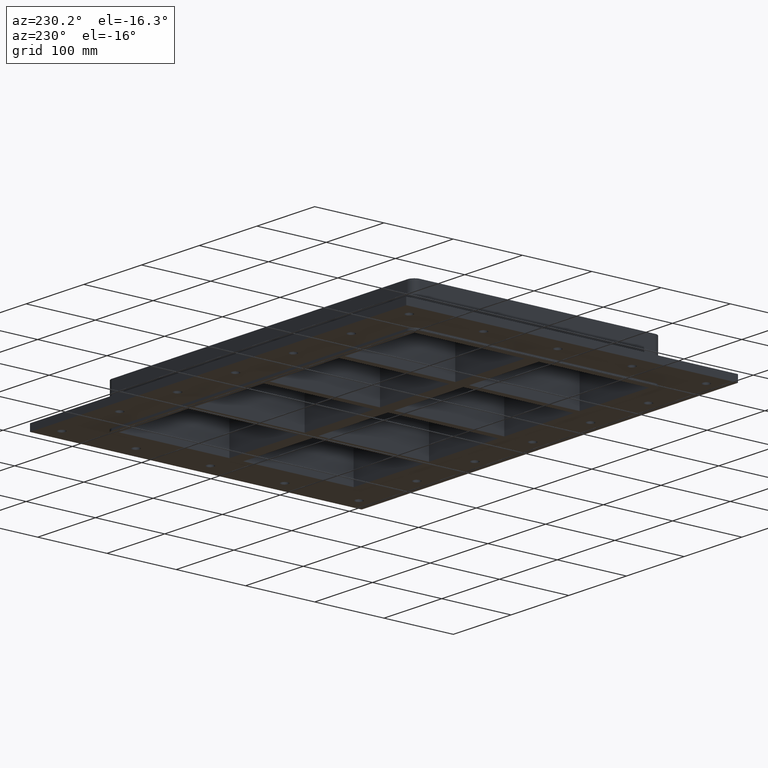
[diagram: clean part render]
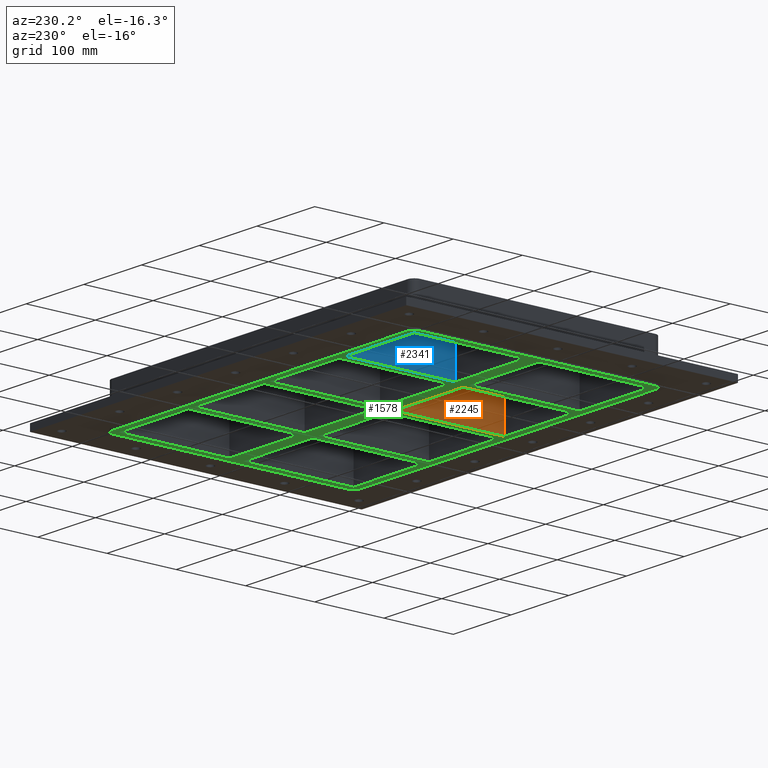
[diagram: same view with three faces highlighted in distinct colors, each labeled with its STEP entity id]
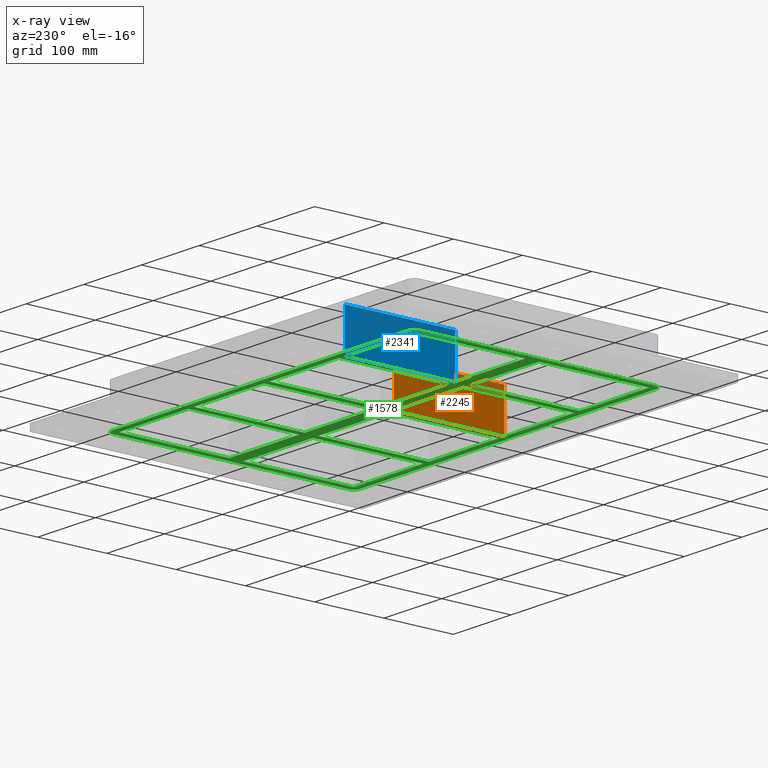
[diagram: x-ray of the same camera — body ghosted, the three highlighted faces saturated]
A machine part, auxiliary view with three faces highlighted in distinct colors.
The next image is the same camera in x-ray (body ghosted, the three faces saturated) — at least one of them is partly hidden behind the body in this view.
Their STEP definitions:

[orange] entity #2245 — the highlighted planar face has unit normal (1, 0, 0).
#1486=CARTESIAN_POINT('',(-5.000000000000036,-169.49999999999991,-30.0));
#1487=VERTEX_POINT('',#1486);
#1494=CARTESIAN_POINT('',(-5.000000000000036,-9.999999999999893,-30.0));
#1495=VERTEX_POINT('',#1494);
#1496=CARTESIAN_POINT('',(-5.000000000000036,-169.49999999999991,-30.0));
#1497=DIRECTION('',(0.0,1.0,0.0));
#1498=VECTOR('',#1497,159.50000000000003);
#1499=LINE('',#1496,#1498);
#1500=EDGE_CURVE('',#1487,#1495,#1499,.T.);
#2205=CARTESIAN_POINT('',(-5.000000000000036,-169.49999999999991,30.0));
#2206=VERTEX_POINT('',#2205);
#2213=CARTESIAN_POINT('',(-5.000000000000036,-169.49999999999991,30.0));
#2214=DIRECTION('',(0.0,0.0,-1.0));
#2215=VECTOR('',#2214,60.0);
#2216=LINE('',#2213,#2215);
#2217=EDGE_CURVE('',#2206,#1487,#2216,.T.);
#2222=CARTESIAN_POINT('',(-5.000000000000036,-9.999999999999893,30.0));
#2223=DIRECTION('',(1.0,0.0,0.0));
#2224=DIRECTION('',(0.0,-1.0,0.0));
#2225=AXIS2_PLACEMENT_3D('',#2222,#2223,#2224);
#2226=PLANE('',#2225);
#2227=ORIENTED_EDGE('',*,*,#1500,.F.);
#2228=ORIENTED_EDGE('',*,*,#2217,.F.);
#2229=CARTESIAN_POINT('',(-5.000000000000036,-9.999999999999893,30.0));
#2230=VERTEX_POINT('',#2229);
#2231=CARTESIAN_POINT('',(-5.000000000000036,-9.999999999999893,30.0));
#2232=DIRECTION('',(0.0,-1.0,0.0));
#2233=VECTOR('',#2232,159.50000000000003);
#2234=LINE('',#2231,#2233);
#2235=EDGE_CURVE('',#2230,#2206,#2234,.T.);
#2236=ORIENTED_EDGE('',*,*,#2235,.F.);
#2237=CARTESIAN_POINT('',(-5.000000000000036,-9.999999999999893,30.0));
#2238=DIRECTION('',(0.0,0.0,-1.0));
#2239=VECTOR('',#2238,60.0);
#2240=LINE('',#2237,#2239);
#2241=EDGE_CURVE('',#2230,#1495,#2240,.T.);
#2242=ORIENTED_EDGE('',*,*,#2241,.T.);
#2243=EDGE_LOOP('',(#2227,#2228,#2236,#2242));
#2244=FACE_OUTER_BOUND('',#2243,.T.);
#2245=ADVANCED_FACE('',(#2244),#2226,.F.);

[blue] entity #2341 — the highlighted planar face has unit normal (1, 0, 0).
#1520=CARTESIAN_POINT('',(-135.50000000000011,10.000000000000071,-30.0));
#1521=VERTEX_POINT('',#1520);
#1528=CARTESIAN_POINT('',(-135.50000000000011,169.50000000000011,-30.0));
#1529=VERTEX_POINT('',#1528);
#1530=CARTESIAN_POINT('',(-135.50000000000011,10.000000000000071,-30.0));
#1531=DIRECTION('',(0.0,1.0,0.0));
#1532=VECTOR('',#1531,159.50000000000006);
#1533=LINE('',#1530,#1532);
#1534=EDGE_CURVE('',#1521,#1529,#1533,.T.);
#2301=CARTESIAN_POINT('',(-135.50000000000011,10.000000000000071,30.0));
#2302=VERTEX_POINT('',#2301);
#2309=CARTESIAN_POINT('',(-135.50000000000011,10.000000000000071,30.0));
#2310=DIRECTION('',(0.0,0.0,-1.0));
#2311=VECTOR('',#2310,60.0);
#2312=LINE('',#2309,#2311);
#2313=EDGE_CURVE('',#2302,#1521,#2312,.T.);
#2318=CARTESIAN_POINT('',(-135.50000000000011,169.50000000000011,30.0));
#2319=DIRECTION('',(1.0,0.0,0.0));
#2320=DIRECTION('',(0.0,-1.0,0.0));
#2321=AXIS2_PLACEMENT_3D('',#2318,#2319,#2320);
#2322=PLANE('',#2321);
#2323=ORIENTED_EDGE('',*,*,#1534,.F.);
#2324=ORIENTED_EDGE('',*,*,#2313,.F.);
#2325=CARTESIAN_POINT('',(-135.50000000000011,169.50000000000011,30.0));
#2326=VERTEX_POINT('',#2325);
#2327=CARTESIAN_POINT('',(-135.50000000000011,169.50000000000011,30.0));
#2328=DIRECTION('',(0.0,-1.0,0.0));
#2329=VECTOR('',#2328,159.50000000000006);
#2330=LINE('',#2327,#2329);
#2331=EDGE_CURVE('',#2326,#2302,#2330,.T.);
#2332=ORIENTED_EDGE('',*,*,#2331,.F.);
#2333=CARTESIAN_POINT('',(-135.50000000000011,169.50000000000011,30.0));
#2334=DIRECTION('',(0.0,0.0,-1.0));
#2335=VECTOR('',#2334,60.0);
#2336=LINE('',#2333,#2335);
#2337=EDGE_CURVE('',#2326,#1529,#2336,.T.);
#2338=ORIENTED_EDGE('',*,*,#2337,.T.);
#2339=EDGE_LOOP('',(#2323,#2324,#2332,#2338));
#2340=FACE_OUTER_BOUND('',#2339,.T.);
#2341=ADVANCED_FACE('',(#2340),#2322,.F.);

[green] entity #1578 — the highlighted planar face has unit normal (0, 0, 1).
#1042=CARTESIAN_POINT('',(255.99999999999994,-179.49999999999994,-30.0));
#1043=VERTEX_POINT('',#1042);
#1050=CARTESIAN_POINT('',(265.99999999999994,-169.49999999999994,-30.0));
#1051=VERTEX_POINT('',#1050);
#1052=CARTESIAN_POINT('',(255.99999999999994,-169.49999999999994,-30.0));
#1053=DIRECTION('',(0.0,0.0,1.0));
#1054=DIRECTION('',(0.707106781186547,-0.707106781186547,0.0));
#1055=AXIS2_PLACEMENT_3D('',#1052,#1053,#1054);
#1056=CIRCLE('',#1055,9.999999999999998);
#1057=EDGE_CURVE('',#1043,#1051,#1056,.T.);
#1106=CARTESIAN_POINT('',(-256.0,-179.49999999999994,-30.0));
#1107=VERTEX_POINT('',#1106);
#1114=CARTESIAN_POINT('',(256.0,-179.49999999999994,-30.0));
#1115=DIRECTION('',(-1.0,0.0,0.0));
#1116=VECTOR('',#1115,512.0);
#1117=LINE('',#1114,#1116);
#1118=EDGE_CURVE('',#1043,#1107,#1117,.T.);
#1154=CARTESIAN_POINT('',(-266.0,-169.5,-30.0));
#1155=VERTEX_POINT('',#1154);
#1162=CARTESIAN_POINT('',(-256.0,-169.49999999999994,-30.0));
#1163=DIRECTION('',(0.0,0.0,1.0));
#1164=DIRECTION('',(-0.707106781186547,-0.707106781186547,0.0));
#1165=AXIS2_PLACEMENT_3D('',#1162,#1163,#1164);
#1166=CIRCLE('',#1165,9.999999999999998);
#1167=EDGE_CURVE('',#1155,#1107,#1166,.T.);
#1204=CARTESIAN_POINT('',(-266.00000000000017,169.50000000000003,-30.0));
#1205=VERTEX_POINT('',#1204);
#1212=CARTESIAN_POINT('',(-266.00000000000006,-169.5,-30.0));
#1213=DIRECTION('',(0.0,1.0,0.0));
#1214=VECTOR('',#1213,339.0);
#1215=LINE('',#1212,#1214);
#1216=EDGE_CURVE('',#1155,#1205,#1215,.T.);
#1252=CARTESIAN_POINT('',(-256.00000000000017,179.50000000000006,-30.0));
#1253=VERTEX_POINT('',#1252);
#1260=CARTESIAN_POINT('',(-256.00000000000017,169.50000000000003,-30.0));
#1261=DIRECTION('',(0.0,0.0,1.0));
#1262=DIRECTION('',(-0.707106781186547,0.707106781186547,0.0));
#1263=AXIS2_PLACEMENT_3D('',#1260,#1261,#1262);
#1264=CIRCLE('',#1263,9.999999999999998);
#1265=EDGE_CURVE('',#1253,#1205,#1264,.T.);
#1271=CARTESIAN_POINT('',(-9.569599E-014,4.543566E-014,-30.0));
#1272=DIRECTION('',(0.0,0.0,1.0));
#1273=DIRECTION('',(1.0,0.0,0.0));
#1274=AXIS2_PLACEMENT_3D('',#1271,#1272,#1273);
#1275=PLANE('',#1274);
#1276=ORIENTED_EDGE('',*,*,#1057,.F.);
#1277=ORIENTED_EDGE('',*,*,#1118,.T.);
#1278=ORIENTED_EDGE('',*,*,#1167,.F.);
#1279=ORIENTED_EDGE('',*,*,#1216,.T.);
#1280=ORIENTED_EDGE('',*,*,#1265,.F.);
#1281=CARTESIAN_POINT('',(255.99999999999989,179.50000000000003,-30.0));
#1282=VERTEX_POINT('',#1281);
#1283=CARTESIAN_POINT('',(-256.00000000000011,179.50000000000006,-30.0));
#1284=DIRECTION('',(1.0,0.0,0.0));
#1285=VECTOR('',#1284,512.0);
#1286=LINE('',#1283,#1285);
#1287=EDGE_CURVE('',#1253,#1282,#1286,.T.);
#1288=ORIENTED_EDGE('',*,*,#1287,.T.);
#1289=CARTESIAN_POINT('',(265.99999999999989,169.50000000000003,-30.0));
#1290=VERTEX_POINT('',#1289);
#1291=CARTESIAN_POINT('',(255.99999999999989,169.50000000000003,-30.0));
#1292=DIRECTION('',(0.0,0.0,1.0));
#1293=DIRECTION('',(0.707106781186547,0.707106781186547,0.0));
#1294=AXIS2_PLACEMENT_3D('',#1291,#1292,#1293);
#1295=CIRCLE('',#1294,9.999999999999998);
#1296=EDGE_CURVE('',#1290,#1282,#1295,.T.);
#1297=ORIENTED_EDGE('',*,*,#1296,.F.);
#1298=CARTESIAN_POINT('',(265.99999999999989,169.50000000000006,-30.0));
#1299=DIRECTION('',(0.0,-1.0,0.0));
#1300=VECTOR('',#1299,339.0);
#1301=LINE('',#1298,#1300);
#1302=EDGE_CURVE('',#1290,#1051,#1301,.T.);
#1303=ORIENTED_EDGE('',*,*,#1302,.T.);
#1304=EDGE_LOOP('',(#1276,#1277,#1278,#1279,#1280,#1288,#1297,#1303));
#1305=FACE_OUTER_BOUND('',#1304,.T.);
#1306=CARTESIAN_POINT('',(135.49999999999989,169.50000000000006,-30.0));
#1307=VERTEX_POINT('',#1306);
#1308=CARTESIAN_POINT('',(135.49999999999994,10.000000000000107,-30.0));
#1309=VERTEX_POINT('',#1308);
#1310=CARTESIAN_POINT('',(135.49999999999991,169.50000000000003,-30.0));
#1311=DIRECTION('',(0.0,-1.0,0.0));
#1312=VECTOR('',#1311,159.49999999999991);
#1313=LINE('',#1310,#1312);
#1314=EDGE_CURVE('',#1307,#1309,#1313,.T.);
#1315=ORIENTED_EDGE('',*,*,#1314,.T.);
#1316=CARTESIAN_POINT('',(255.99999999999994,10.000000000000071,-30.0));
#1317=VERTEX_POINT('',#1316);
#1318=CARTESIAN_POINT('',(135.49999999999994,10.000000000000107,-30.0));
#1319=DIRECTION('',(1.0,0.0,0.0));
#1320=VECTOR('',#1319,120.5);
#1321=LINE('',#1318,#1320);
#1322=EDGE_CURVE('',#1309,#1317,#1321,.T.);
#1323=ORIENTED_EDGE('',*,*,#1322,.T.);
#1324=CARTESIAN_POINT('',(255.99999999999994,169.50000000000011,-30.0));
#1325=VERTEX_POINT('',#1324);
#1326=CARTESIAN_POINT('',(255.99999999999994,10.000000000000071,-30.0));
#1327=DIRECTION('',(0.0,1.0,0.0));
#1328=VECTOR('',#1327,159.50000000000006);
#1329=LINE('',#1326,#1328);
#1330=EDGE_CURVE('',#1317,#1325,#1329,.T.);
#1331=ORIENTED_EDGE('',*,*,#1330,.T.);
#1332=CARTESIAN_POINT('',(255.99999999999994,169.50000000000009,-30.0));
#1333=DIRECTION('',(-1.0,0.0,0.0));
#1334=VECTOR('',#1333,120.50000000000006);
#1335=LINE('',#1332,#1334);
#1336=EDGE_CURVE('',#1325,#1307,#1335,.T.);
#1337=ORIENTED_EDGE('',*,*,#1336,.T.);
#1338=EDGE_LOOP('',(#1315,#1323,#1331,#1337));
#1339=FACE_BOUND('',#1338,.T.);
#1340=CARTESIAN_POINT('',(135.49999999999997,-9.999999999999929,-30.0));
#1341=VERTEX_POINT('',#1340);
#1342=CARTESIAN_POINT('',(135.5,-169.49999999999991,-30.0));
#1343=VERTEX_POINT('',#1342);
#1344=CARTESIAN_POINT('',(135.49999999999997,-9.999999999999929,-30.0));
#1345=DIRECTION('',(0.0,-1.0,0.0));
#1346=VECTOR('',#1345,159.5);
#1347=LINE('',#1344,#1346);
#1348=EDGE_CURVE('',#1341,#1343,#1347,.T.);
#1349=ORIENTED_EDGE('',*,*,#1348,.T.);
#1350=CARTESIAN_POINT('',(256.0,-169.49999999999991,-30.0));
#1351=VERTEX_POINT('',#1350);
#1352=CARTESIAN_POINT('',(135.5,-169.49999999999989,-30.0));
#1353=DIRECTION('',(1.0,0.0,0.0));
#1354=VECTOR('',#1353,120.5);
#1355=LINE('',#1352,#1354);
#1356=EDGE_CURVE('',#1343,#1351,#1355,.T.);
#1357=ORIENTED_EDGE('',*,*,#1356,.T.);
#1358=CARTESIAN_POINT('',(256.0,-9.999999999999893,-30.0));
#1359=VERTEX_POINT('',#1358);
#1360=CARTESIAN_POINT('',(256.0,-169.49999999999991,-30.0));
#1361=DIRECTION('',(0.0,1.0,0.0));
#1362=VECTOR('',#1361,159.50000000000003);
#1363=LINE('',#1360,#1362);
#1364=EDGE_CURVE('',#1351,#1359,#1363,.T.);
#1365=ORIENTED_EDGE('',*,*,#1364,.T.);
#1366=CARTESIAN_POINT('',(256.0,-9.999999999999913,-30.0));
#1367=DIRECTION('',(-1.0,0.0,0.0));
#1368=VECTOR('',#1367,120.50000000000003);
#1369=LINE('',#1366,#1368);
#1370=EDGE_CURVE('',#1359,#1341,#1369,.T.);
#1371=ORIENTED_EDGE('',*,*,#1370,.T.);
#1372=EDGE_LOOP('',(#1349,#1357,#1365,#1371));
#1373=FACE_BOUND('',#1372,.T.);
#1374=CARTESIAN_POINT('',(4.999999999999858,169.50000000000006,-30.0));
#1375=VERTEX_POINT('',#1374);
#1376=CARTESIAN_POINT('',(4.999999999999893,10.000000000000107,-30.0));
#1377=VERTEX_POINT('',#1376);
#1378=CARTESIAN_POINT('',(4.999999999999858,169.50000000000009,-30.0));
#1379=DIRECTION('',(0.0,-1.0,0.0));
#1380=VECTOR('',#1379,159.49999999999997);
#1381=LINE('',#1378,#1380);
#1382=EDGE_CURVE('',#1375,#1377,#1381,.T.);
#1383=ORIENTED_EDGE('',*,*,#1382,.T.);
#1384=CARTESIAN_POINT('',(125.4999999999999,10.000000000000071,-30.0));
#1385=VERTEX_POINT('',#1384);
#1386=CARTESIAN_POINT('',(4.999999999999893,10.000000000000107,-30.0));
#1387=DIRECTION('',(1.0,0.0,0.0));
#1388=VECTOR('',#1387,120.5);
#1389=LINE('',#1386,#1388);
#1390=EDGE_CURVE('',#1377,#1385,#1389,.T.);
#1391=ORIENTED_EDGE('',*,*,#1390,.T.);
#1392=CARTESIAN_POINT('',(125.4999999999999,169.50000000000011,-30.0));
#1393=VERTEX_POINT('',#1392);
#1394=CARTESIAN_POINT('',(125.4999999999999,10.000000000000071,-30.0));
#1395=DIRECTION('',(0.0,1.0,0.0));
#1396=VECTOR('',#1395,159.50000000000006);
#1397=LINE('',#1394,#1396);
#1398=EDGE_CURVE('',#1385,#1393,#1397,.T.);
#1399=ORIENTED_EDGE('',*,*,#1398,.T.);
#1400=CARTESIAN_POINT('',(125.4999999999999,169.50000000000009,-30.0));
#1401=DIRECTION('',(-1.0,0.0,0.0));
#1402=VECTOR('',#1401,120.50000000000004);
#1403=LINE('',#1400,#1402);
#1404=EDGE_CURVE('',#1393,#1375,#1403,.T.);
#1405=ORIENTED_EDGE('',*,*,#1404,.T.);
#1406=EDGE_LOOP('',(#1383,#1391,#1399,#1405));
#1407=FACE_BOUND('',#1406,.T.);
#1408=CARTESIAN_POINT('',(4.999999999999929,-9.999999999999929,-30.0));
#1409=VERTEX_POINT('',#1408);
#1410=CARTESIAN_POINT('',(4.999999999999965,-169.49999999999991,-30.0));
#1411=VERTEX_POINT('',#1410);
#1412=CARTESIAN_POINT('',(4.999999999999929,-9.999999999999929,-30.0));
#1413=DIRECTION('',(0.0,-1.0,0.0));
#1414=VECTOR('',#1413,159.5);
#1415=LINE('',#1412,#1414);
#1416=EDGE_CURVE('',#1409,#1411,#1415,.T.);
#1417=ORIENTED_EDGE('',*,*,#1416,.T.);
#1418=CARTESIAN_POINT('',(125.49999999999997,-169.49999999999991,-30.0));
#1419=VERTEX_POINT('',#1418);
#1420=CARTESIAN_POINT('',(4.999999999999965,-169.49999999999986,-30.0));
#1421=DIRECTION('',(1.0,0.0,0.0));
#1422=VECTOR('',#1421,120.5);
#1423=LINE('',#1420,#1422);
#1424=EDGE_CURVE('',#1411,#1419,#1423,.T.);
#1425=ORIENTED_EDGE('',*,*,#1424,.T.);
#1426=CARTESIAN_POINT('',(125.49999999999997,-9.999999999999893,-30.0));
#1427=VERTEX_POINT('',#1426);
#1428=CARTESIAN_POINT('',(125.49999999999997,-169.49999999999991,-30.0));
#1429=DIRECTION('',(0.0,1.0,0.0));
#1430=VECTOR('',#1429,159.50000000000003);
#1431=LINE('',#1428,#1430);
#1432=EDGE_CURVE('',#1419,#1427,#1431,.T.);
#1433=ORIENTED_EDGE('',*,*,#1432,.T.);
#1434=CARTESIAN_POINT('',(125.49999999999997,-9.999999999999913,-30.0));
#1435=DIRECTION('',(-1.0,0.0,0.0));
#1436=VECTOR('',#1435,120.50000000000004);
#1437=LINE('',#1434,#1436);
#1438=EDGE_CURVE('',#1427,#1409,#1437,.T.);
#1439=ORIENTED_EDGE('',*,*,#1438,.T.);
#1440=EDGE_LOOP('',(#1417,#1425,#1433,#1439));
#1441=FACE_BOUND('',#1440,.T.);
#1442=CARTESIAN_POINT('',(-125.50000000000014,169.50000000000006,-30.0));
#1443=VERTEX_POINT('',#1442);
#1444=CARTESIAN_POINT('',(-125.50000000000011,10.000000000000107,-30.0));
#1445=VERTEX_POINT('',#1444);
#1446=CARTESIAN_POINT('',(-125.50000000000016,169.50000000000006,-30.0));
#1447=DIRECTION('',(0.0,-1.0,0.0));
#1448=VECTOR('',#1447,159.49999999999994);
#1449=LINE('',#1446,#1448);
#1450=EDGE_CURVE('',#1443,#1445,#1449,.T.);
#1451=ORIENTED_EDGE('',*,*,#1450,.T.);
#1452=CARTESIAN_POINT('',(-5.000000000000107,10.000000000000071,-30.0));
#1453=VERTEX_POINT('',#1452);
#1454=CARTESIAN_POINT('',(-125.5000000000001,10.000000000000107,-30.0));
#1455=DIRECTION('',(1.0,0.0,0.0));
#1456=VECTOR('',#1455,120.5);
#1457=LINE('',#1454,#1456);
#1458=EDGE_CURVE('',#1445,#1453,#1457,.T.);
#1459=ORIENTED_EDGE('',*,*,#1458,.T.);
#1460=CARTESIAN_POINT('',(-5.000000000000107,169.50000000000011,-30.0));
#1461=VERTEX_POINT('',#1460);
#1462=CARTESIAN_POINT('',(-5.000000000000107,10.000000000000071,-30.0));
#1463=DIRECTION('',(0.0,1.0,0.0));
#1464=VECTOR('',#1463,159.50000000000006);
#1465=LINE('',#1462,#1464);
#1466=EDGE_CURVE('',#1453,#1461,#1465,.T.);
#1467=ORIENTED_EDGE('',*,*,#1466,.T.);
#1468=CARTESIAN_POINT('',(-5.000000000000107,169.50000000000006,-30.0));
#1469=DIRECTION('',(-1.0,0.0,0.0));
#1470=VECTOR('',#1469,120.50000000000003);
#1471=LINE('',#1468,#1470);
#1472=EDGE_CURVE('',#1461,#1443,#1471,.T.);
#1473=ORIENTED_EDGE('',*,*,#1472,.T.);
#1474=EDGE_LOOP('',(#1451,#1459,#1467,#1473));
#1475=FACE_BOUND('',#1474,.T.);
#1476=CARTESIAN_POINT('',(-125.50000000000009,-9.999999999999929,-30.0));
#1477=VERTEX_POINT('',#1476);
#1478=CARTESIAN_POINT('',(-125.50000000000004,-169.49999999999991,-30.0));
#1479=VERTEX_POINT('',#1478);
#1480=CARTESIAN_POINT('',(-125.50000000000007,-9.999999999999929,-30.0));
#1481=DIRECTION('',(0.0,-1.0,0.0));
#1482=VECTOR('',#1481,159.5);
#1483=LINE('',#1480,#1482);
#1484=EDGE_CURVE('',#1477,#1479,#1483,.T.);
#1485=ORIENTED_EDGE('',*,*,#1484,.T.);
#1486=CARTESIAN_POINT('',(-5.000000000000036,-169.49999999999991,-30.0));
#1487=VERTEX_POINT('',#1486);
#1488=CARTESIAN_POINT('',(-125.50000000000004,-169.49999999999989,-30.0));
#1489=DIRECTION('',(1.0,0.0,0.0));
#1490=VECTOR('',#1489,120.5);
#1491=LINE('',#1488,#1490);
#1492=EDGE_CURVE('',#1479,#1487,#1491,.T.);
#1493=ORIENTED_EDGE('',*,*,#1492,.T.);
#1494=CARTESIAN_POINT('',(-5.000000000000036,-9.999999999999893,-30.0));
#1495=VERTEX_POINT('',#1494);
#1496=CARTESIAN_POINT('',(-5.000000000000036,-169.49999999999991,-30.0));
#1497=DIRECTION('',(0.0,1.0,0.0));
#1498=VECTOR('',#1497,159.50000000000003);
#1499=LINE('',#1496,#1498);
#1500=EDGE_CURVE('',#1487,#1495,#1499,.T.);
#1501=ORIENTED_EDGE('',*,*,#1500,.T.);
#1502=CARTESIAN_POINT('',(-5.000000000000036,-9.999999999999913,-30.0));
#1503=DIRECTION('',(-1.0,0.0,0.0));
#1504=VECTOR('',#1503,120.50000000000006);
#1505=LINE('',#1502,#1504);
#1506=EDGE_CURVE('',#1495,#1477,#1505,.T.);
#1507=ORIENTED_EDGE('',*,*,#1506,.T.);
#1508=EDGE_LOOP('',(#1485,#1493,#1501,#1507));
#1509=FACE_BOUND('',#1508,.T.);
#1510=CARTESIAN_POINT('',(-256.00000000000017,169.50000000000006,-30.0));
#1511=VERTEX_POINT('',#1510);
#1512=CARTESIAN_POINT('',(-256.00000000000011,10.000000000000107,-30.0));
#1513=VERTEX_POINT('',#1512);
#1514=CARTESIAN_POINT('',(-256.00000000000017,169.50000000000009,-30.0));
#1515=DIRECTION('',(0.0,-1.0,0.0));
#1516=VECTOR('',#1515,159.49999999999997);
#1517=LINE('',#1514,#1516);
#1518=EDGE_CURVE('',#1511,#1513,#1517,.T.);
#1519=ORIENTED_EDGE('',*,*,#1518,.T.);
#1520=CARTESIAN_POINT('',(-135.50000000000011,10.000000000000071,-30.0));
#1521=VERTEX_POINT('',#1520);
#1522=CARTESIAN_POINT('',(-256.00000000000011,10.000000000000107,-30.0));
#1523=DIRECTION('',(1.0,0.0,0.0));
#1524=VECTOR('',#1523,120.5);
#1525=LINE('',#1522,#1524);
#1526=EDGE_CURVE('',#1513,#1521,#1525,.T.);
#1527=ORIENTED_EDGE('',*,*,#1526,.T.);
#1528=CARTESIAN_POINT('',(-135.50000000000011,169.50000000000011,-30.0));
#1529=VERTEX_POINT('',#1528);
#1530=CARTESIAN_POINT('',(-135.50000000000011,10.000000000000071,-30.0));
#1531=DIRECTION('',(0.0,1.0,0.0));
#1532=VECTOR('',#1531,159.50000000000006);
#1533=LINE('',#1530,#1532);
#1534=EDGE_CURVE('',#1521,#1529,#1533,.T.);
#1535=ORIENTED_EDGE('',*,*,#1534,.T.);
#1536=CARTESIAN_POINT('',(-135.50000000000011,169.50000000000011,-30.0));
#1537=DIRECTION('',(-1.0,0.0,0.0));
#1538=VECTOR('',#1537,120.5);
#1539=LINE('',#1536,#1538);
#1540=EDGE_CURVE('',#1529,#1511,#1539,.T.);
#1541=ORIENTED_EDGE('',*,*,#1540,.T.);
#1542=EDGE_LOOP('',(#1519,#1527,#1535,#1541));
#1543=FACE_BOUND('',#1542,.T.);
#1544=CARTESIAN_POINT('',(-135.50000000000006,-169.49999999999991,-30.0));
#1545=VERTEX_POINT('',#1544);
#1546=CARTESIAN_POINT('',(-135.50000000000006,-9.999999999999911,-30.0));
#1547=VERTEX_POINT('',#1546);
#1548=CARTESIAN_POINT('',(-135.50000000000006,-169.49999999999994,-30.0));
#1549=DIRECTION('',(0.0,1.0,0.0));
#1550=VECTOR('',#1549,159.50000000000003);
#1551=LINE('',#1548,#1550);
#1552=EDGE_CURVE('',#1545,#1547,#1551,.T.);
#1553=ORIENTED_EDGE('',*,*,#1552,.T.);
#1554=CARTESIAN_POINT('',(-256.00000000000011,-9.999999999999927,-30.0));
#1555=VERTEX_POINT('',#1554);
#1556=CARTESIAN_POINT('',(-135.50000000000003,-9.999999999999911,-30.0));
#1557=DIRECTION('',(-1.0,0.0,0.0));
#1558=VECTOR('',#1557,120.50000000000003);
#1559=LINE('',#1556,#1558);
#1560=EDGE_CURVE('',#1547,#1555,#1559,.T.);
#1561=ORIENTED_EDGE('',*,*,#1560,.T.);
#1562=CARTESIAN_POINT('',(-256.00000000000006,-169.49999999999989,-30.0));
#1563=VERTEX_POINT('',#1562);
#1564=CARTESIAN_POINT('',(-256.00000000000011,-9.999999999999929,-30.0));
#1565=DIRECTION('',(0.0,-1.0,0.0));
#1566=VECTOR('',#1565,159.49999999999994);
#1567=LINE('',#1564,#1566);
#1568=EDGE_CURVE('',#1555,#1563,#1567,.T.);
#1569=ORIENTED_EDGE('',*,*,#1568,.T.);
#1570=CARTESIAN_POINT('',(-256.0,-169.49999999999989,-30.0));
#1571=DIRECTION('',(1.0,0.0,0.0));
#1572=VECTOR('',#1571,120.49999999999997);
#1573=LINE('',#1570,#1572);
#1574=EDGE_CURVE('',#1563,#1545,#1573,.T.);
#1575=ORIENTED_EDGE('',*,*,#1574,.T.);
#1576=EDGE_LOOP('',(#1553,#1561,#1569,#1575));
#1577=FACE_BOUND('',#1576,.T.);
#1578=ADVANCED_FACE('',(#1305,#1339,#1373,#1407,#1441,#1475,#1509,#1543,#1577),#1275,.F.);